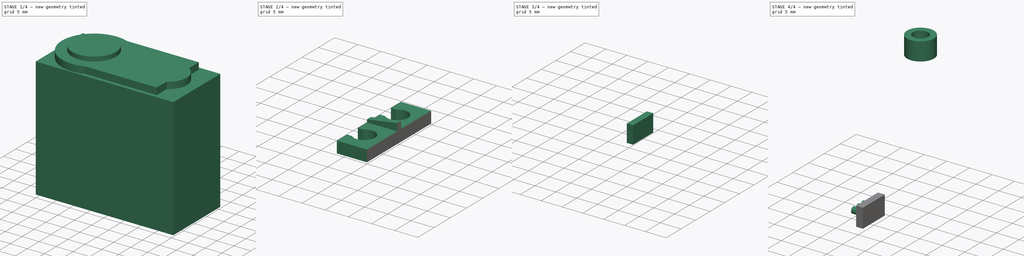
[diagram: build sequence overview — one tinted view per stage of 4, left to right]
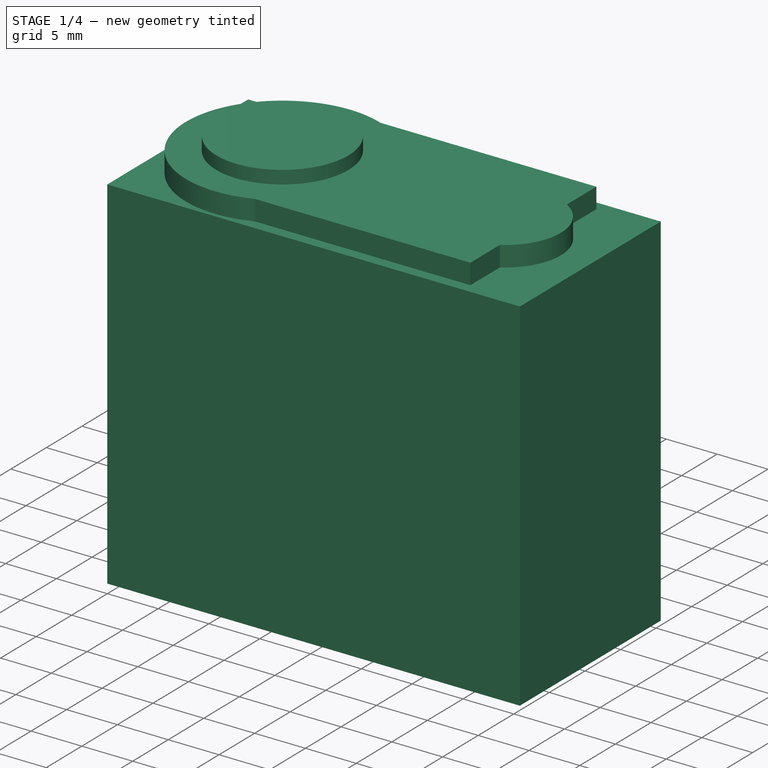
[diagram: stage 1 of 4 — iso view after this stage's code; geometry added in this stage tinted green]
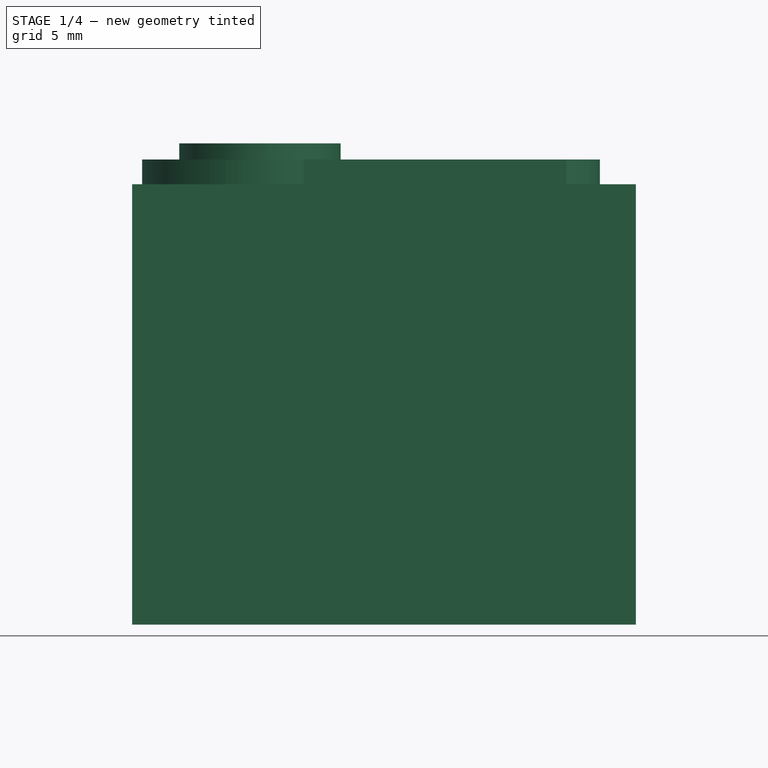
[diagram: stage 1 of 4 — front view after this stage's code; geometry added in this stage tinted green]
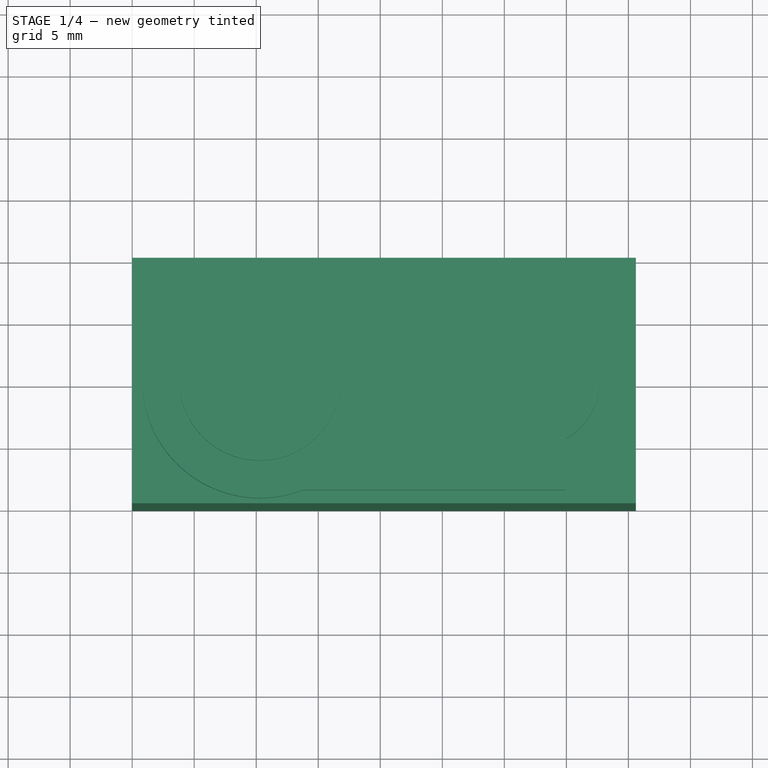
[diagram: stage 1 of 4 — top view after this stage's code; geometry added in this stage tinted green]
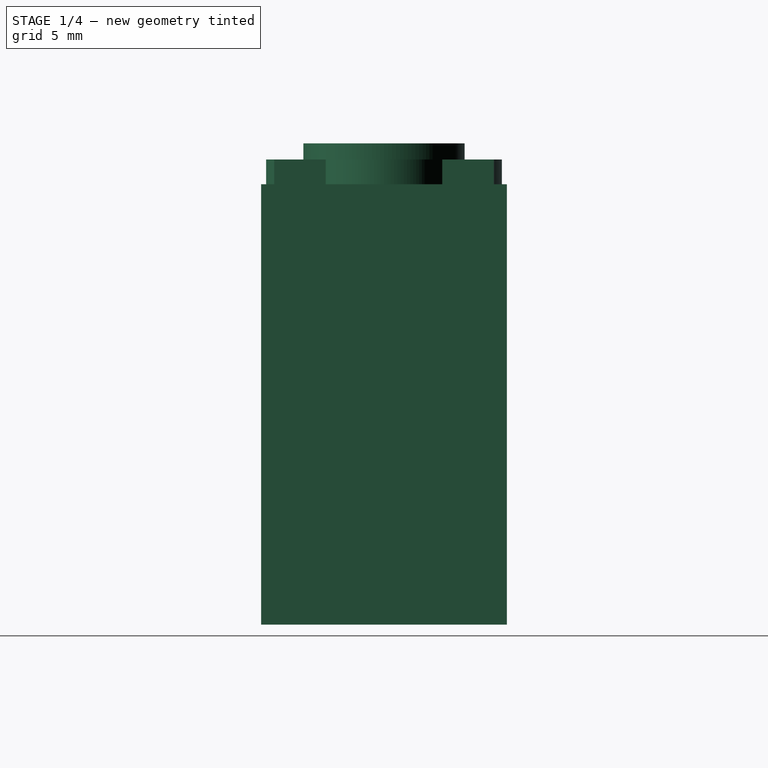
[diagram: stage 1 of 4 — right view after this stage's code; geometry added in this stage tinted green]
FCSTD DOCUMENT  (FreeCAD 2023.1102R14555 (Git shallow))
Label: Hitec_D625MW
License: All rights reserved
LicenseURL: https://en.wikipedia.org/wiki/All_rights_reserved
objects: Sketcher::SketchObject×9, PartDesign::Pad×9, PartDesign::Body×3, PartDesign::Plane×3, PartDesign::SubShapeBinder×3, Part::SubShapeBinder×1, PartDesign::Hole×1, PartDesign::Mirrored×1, PartDesign::Boolean×1, PartDesign::Fillet×1, App::Part×1
note: 66 computed .brp shape members not serialized (recipe doc carries the construction recipe); baked Part::Feature solids carry a one-line shape summary decoded from their .brp

FEATURE [Sketcher::SketchObject] Sketch
  ArcFitTolerance = 1e-06
  AttachmentSupport = -> [XY_Plane]
  ExternalBSplineMaxDegree = 5
  ExternalBSplineTolerance = 0.0001
  FullyConstrained = true
  InternalTolerance = 1e-06
  InvalidShape = false
  MakeInternals = false
  MapMode = 5
  Support = -> [XY_Plane]
  TreeRank = 18
  ValidateShape = false
  sketch-geometry (4):
    g0: LineSegment StartX=0 StartY=0 StartZ=0 EndX=40.6 EndY=0 EndZ=0
    g1: LineSegment StartX=40.6 StartY=0 StartZ=0 EndX=40.6 EndY=19.8 EndZ=0
    g2: LineSegment StartX=40.6 StartY=19.8 StartZ=0 EndX=0 EndY=19.8 EndZ=0
    g3: LineSegment StartX=0 StartY=19.8 StartZ=0 EndX=0 EndY=0 EndZ=0
  constraints (11):
    c: Coincident(g0,g1)
    c: Coincident(g1,g2)
    c: Coincident(g2,g3)
    c: Coincident(g3,g0)
    c: Horizontal(g0)
    c: Horizontal(g2)
    c: Vertical(g1)
    c: Vertical(g3)
    c: Coincident(g0,g-1)
    c: Distance(g0) = 40.6
    c: Distance(g1) = 19.8
FEATURE [PartDesign::Pad] Pad
  AddSubType = 0
  AlongSketchNormal = false
  AutoTaperInnerAngle = true
  CheckUpToFaceLimits = true
  ClaimChildren = false
  Direction = (0,0,1)
  Fit = 0
  FitJoin = 0
  InnerFit = 0
  InnerFitJoin = 0
  InvalidShape = false
  Length = 35.5
  Length2 = 10
  Linearize = true
  NewSolid = false
  Profile = -> Sketch
  ReferenceAxis = -> Sketch [N_Axis]
  Refine = true
  Suppress = false
  TaperInnerAngle = 0
  TaperInnerAngleRev = 0
  TreeRank = 19
  Type = 0
  ValidateShape = true
  _ProfileBasedVersion = 1
FEATURE [Sketcher::SketchObject] Sketch001
  ArcFitTolerance = 1e-06
  AttachmentSupport = -> [Pad]
  ExternalBSplineMaxDegree = 5
  ExternalBSplineTolerance = 0.0001
  ExternalGeometry = -> [Pad]
  FullyConstrained = true
  InternalTolerance = 1e-06
  InvalidShape = false
  MakeInternals = false
  MapMode = 5
  Placement = pos=(0,0,35.5) rot=(0,0,1;0rad)
  Support = -> [Pad]
  TreeRank = 20
  ValidateShape = false
  sketch-geometry (11):
    g0: ArcOfCircle CenterX=10.3 CenterY=9.9 CenterZ=0 NormalX=0 NormalY=0 NormalZ=1 AngleXU=0 Radius=9.5 StartAngle=1.21709 EndAngle=5.0661
    g1: LineSegment StartX=13.937 StartY=18.75 StartZ=0 EndX=35 EndY=18.75 EndZ=0
    g2: LineSegment StartX=35 StartY=18.75 StartZ=0 EndX=35 EndY=14.6 EndZ=0
    g3: LineSegment StartX=13.937 StartY=1.05 StartZ=0 EndX=35 EndY=1.05 EndZ=0
    g4: LineSegment StartX=35 StartY=1.05 StartZ=0 EndX=35 EndY=5.2 EndZ=0
    g5: ArcOfCircle CenterX=32.2593 CenterY=9.9 CenterZ=0 NormalX=0 NormalY=0 NormalZ=1 AngleXU=0 Radius=5.44074 StartAngle=5.24032 EndAngle=7.32605
    g6: GeomPoint [constr] X=37.7 Y=9.9 Z=0
    g7: ArcOfCircle CenterX=13.937 CenterY=19.75 CenterZ=0 NormalX=0 NormalY=0 NormalZ=1 AngleXU=0 Radius=1 StartAngle=4.35868 EndAngle=4.71239
    g8: ArcOfCircle CenterX=13.937 CenterY=0.05 CenterZ=0 NormalX=0 NormalY=0 NormalZ=1 AngleXU=0 Radius=1 StartAngle=1.5708 EndAngle=1.9245
    g9: LineSegment [constr] StartX=10.3 StartY=9.9 StartZ=0 EndX=10.3 EndY=19.8 EndZ=0
    g10: LineSegment [constr] StartX=10.3 StartY=9.9 StartZ=0 EndX=10.3 EndY=0 EndZ=0
  constraints (32):
    c: Horizontal(g1)
    c: Coincident(g2,g1)
    c: Vertical(g2)
    c: Horizontal(g3)
    c: Coincident(g4,g3)
    c: Vertical(g4)
    c: Coincident(g5,g2)
    c: Coincident(g5,g4)
    c: Equal(g2,g4)
    c: Equal(g3,g1)
    c: Vertical(g2,g4)
    c: PointOnObject(g6,g5)
    c: Horizontal(g6,g5)
    c: DistanceX(g4,g6) = 2.7
    c: Tangent(g0,g7) = 1.5708
    c: Tangent(g1,g7) = -1.5708
    c: Tangent(g0,g8) = 1.5708
    c: Tangent(g3,g8) = 1.5708
    c: Equal(g8,g7)
    c: Radius(g7) = 1
    c: DistanceY(g3,g1) = 17.7
    c: Distance(g2,g4) = 9.4
    c: Radius(g0) = 9.5
    c: Coincident(g9,g0)
    c: PointOnObject(g9,g-3)
    c: Vertical(g9)
    c: Coincident(g10,g0)
    c: PointOnObject(g10,g-4)
    c: Vertical(g10)
    c: Equal(g10,g9)
    c: DistanceX(g-2,g0) = 10.3
    c: Distance(g1,g-5) = 5.6
FEATURE [PartDesign::Pad] Pad001
  AddSubType = 0
  AlongSketchNormal = false
  AutoTaperInnerAngle = true
  BaseFeature = -> Pad
  CheckUpToFaceLimits = true
  ClaimChildren = false
  Direction = (0,0,1)
  Fit = 0
  FitJoin = 0
  InnerFit = 0
  InnerFitJoin = 0
  InvalidShape = false
  Length = 2
  Length2 = 10
  Linearize = true
  NewSolid = false
  Profile = -> Sketch001
  ReferenceAxis = -> Sketch001 [N_Axis]
  Refine = true
  Suppress = false
  TaperInnerAngle = 0
  TaperInnerAngleRev = 0
  TreeRank = 21
  Type = 0
  ValidateShape = true
  _ProfileBasedVersion = 1
FEATURE [Sketcher::SketchObject] Sketch002
  ArcFitTolerance = 1e-06
  AttachmentSupport = -> [Pad001]
  ExternalBSplineMaxDegree = 5
  ExternalBSplineTolerance = 0.0001
  ExternalGeometry = -> [Pad001]
  FullyConstrained = true
  InternalTolerance = 1e-06
  InvalidShape = false
  MakeInternals = false
  MapMode = 5
  Placement = pos=(0,0,37.5) rot=(0,0,1;0rad)
  Support = -> [Pad001]
  TreeRank = 22
  ValidateShape = false
  sketch-geometry (1):
    g0: Circle CenterX=10.3 CenterY=9.9 CenterZ=0 NormalX=0 NormalY=0 NormalZ=1 AngleXU=0 Radius=6.5
  constraints (2):
    c: Coincident(g0,g-3)
    c: Diameter(g0) = 13
FEATURE [PartDesign::Pad] Pad002
  AddSubType = 0
  AlongSketchNormal = false
  AutoTaperInnerAngle = true
  BaseFeature = -> Pad001
  CheckUpToFaceLimits = true
  ClaimChildren = false
  Direction = (0,0,1)
  Fit = 0
  FitJoin = 0
  InnerFit = 0
  InnerFitJoin = 0
  InvalidShape = false
  Length = 1.3
  Length2 = 10
  Linearize = true
  NewSolid = false
  Profile = -> Sketch002
  ReferenceAxis = -> Sketch002 [N_Axis]
  Refine = true
  Suppress = false
  TaperInnerAngle = 0
  TaperInnerAngleRev = 0
  TreeRank = 23
  Type = 0
  ValidateShape = true
  _ProfileBasedVersion = 1
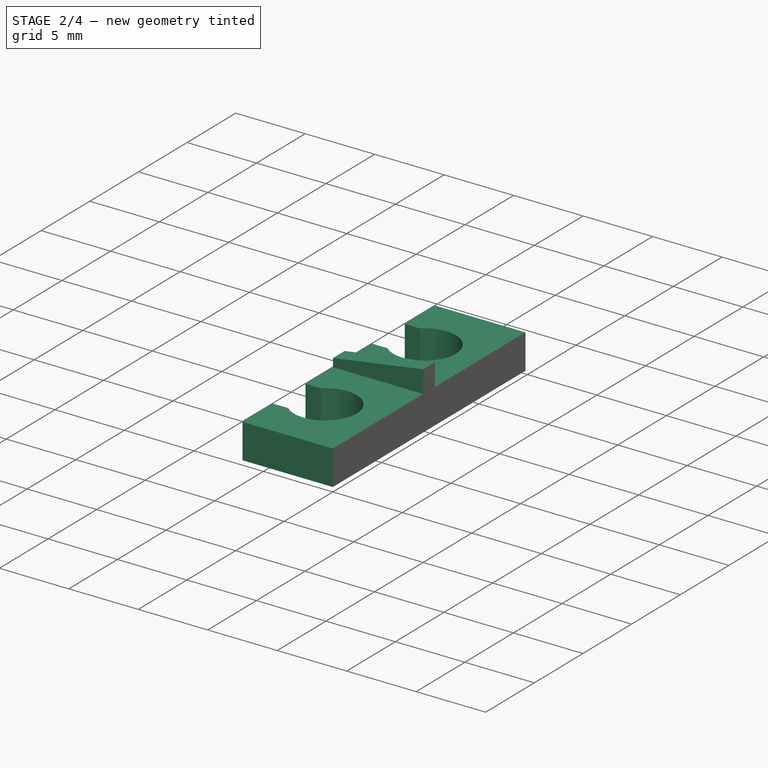
[diagram: stage 2 of 4 — iso view after this stage's code; geometry added in this stage tinted green]
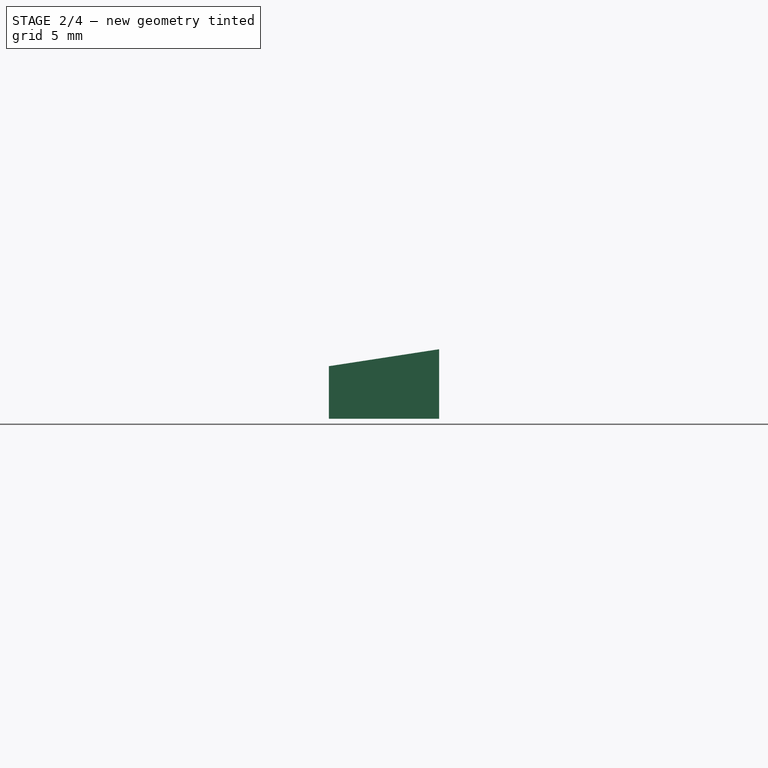
[diagram: stage 2 of 4 — front view after this stage's code; geometry added in this stage tinted green]
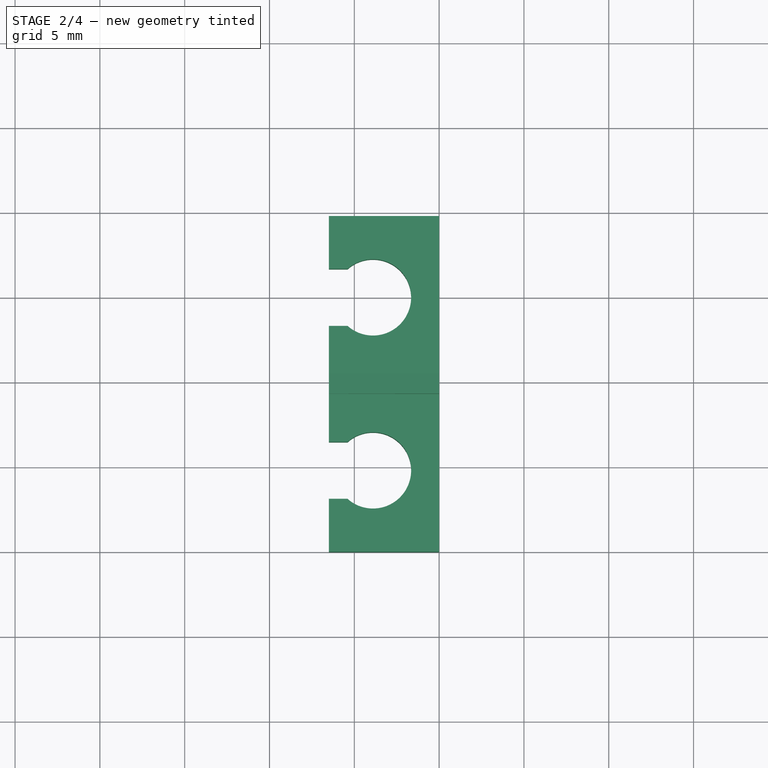
[diagram: stage 2 of 4 — top view after this stage's code; geometry added in this stage tinted green]
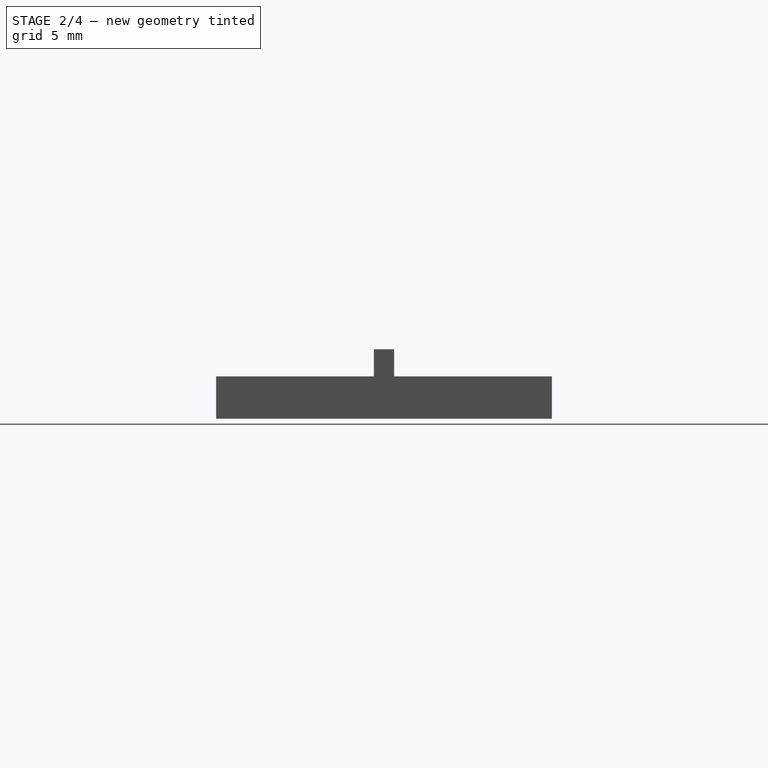
[diagram: stage 2 of 4 — right view after this stage's code; geometry added in this stage tinted green]
FEATURE [Sketcher::SketchObject] Sketch003
  ArcFitTolerance = 1e-06
  AttachmentSupport = -> [Pad002]
  ExternalBSplineMaxDegree = 5
  ExternalBSplineTolerance = 0.0001
  ExternalGeometry = -> [Pad002]
  FullyConstrained = true
  InternalTolerance = 1e-06
  InvalidShape = false
  MakeInternals = false
  MapMode = 5
  Placement = pos=(0,0,38.8) rot=(0,0,1;0rad)
  Support = -> [Pad002]
  TreeRank = 24
  ValidateShape = false
  sketch-geometry (1):
    g0: Circle CenterX=10.3 CenterY=9.9 CenterZ=0 NormalX=0 NormalY=0 NormalZ=1 AngleXU=0 Radius=5.5
  constraints (2):
    c: Coincident(g0,g-3)
    c: Diameter(g0) = 11
FEATURE [PartDesign::Pad] Pad003
  AddSubType = 0
  AlongSketchNormal = false
  AutoTaperInnerAngle = true
  BaseFeature = -> Pad002
  CheckUpToFaceLimits = true
  ClaimChildren = false
  Direction = (0,0,1)
  Fit = 0
  FitJoin = 0
  InnerFit = 0
  InnerFitJoin = 0
  InvalidShape = false
  Length = 0.5
  Length2 = 10
  Linearize = true
  NewSolid = false
  Profile = -> Sketch003
  ReferenceAxis = -> Sketch003 [N_Axis]
  Refine = true
  Suppress = false
  TaperInnerAngle = 0
  TaperInnerAngleRev = 0
  TreeRank = 25
  Type = 0
  ValidateShape = true
  _ProfileBasedVersion = 1
FEATURE [PartDesign::Body] Body001  label="Gear"
  AutoGroupSolids = false
  ClaimAllChildren = false
  ExportMode = 0
  Group = -> [Import,Sketch004,Pad004,Hole]
  InvalidShape = false
  Origin = -> Origin002
  Tip = -> Hole
  TreeRank = 37
  ValidateShape = false
  _ExportChildren = -> [Import,Pad004,Hole]
  _GroupVersion = 1
FEATURE [PartDesign::Plane] DatumPlane
  AttachmentOffset = pos=(0,0,27) rot=(0,0,1;0rad)
  AttachmentSupport = -> [Pad003]
  InvalidShape = false
  Length = 10
  MapMode = 5
  MinimumLength = 10
  MinimumWidth = 10
  Placement = pos=(0,0,27) rot=(0,0,1;3.14159rad)
  ResizeMode = 0
  Support = -> [Pad003]
  TreeRank = 45
  ValidateShape = false
  Width = 10
FEATURE [Sketcher::SketchObject] Sketch005
  ArcFitTolerance = 1e-06
  AttachmentSupport = -> [DatumPlane]
  ExternalBSplineMaxDegree = 5
  ExternalBSplineTolerance = 0.0001
  ExternalGeometry = -> [Pad003]
  FullyConstrained = true
  InternalTolerance = 1e-06
  InvalidShape = false
  MakeInternals = false
  MapMode = 5
  Placement = pos=(0,0,27) rot=(0,0,1;3.14159rad)
  Support = -> [DatumPlane]
  TreeRank = 46
  ValidateShape = false
  sketch-geometry (12):
    g0: LineSegment StartX=0 StartY=-19.8 StartZ=0 EndX=6.5 EndY=-19.8 EndZ=0
    g1: LineSegment StartX=6.5 StartY=-19.8 StartZ=0 EndX=6.5 EndY=-16.6771 EndZ=0
    g2: LineSegment StartX=6.5 StartY=-16.6771 StartZ=0 EndX=5.4 EndY=-16.6771 EndZ=0
    g3: ArcOfCircle CenterX=3.9 CenterY=-15 CenterZ=0 NormalX=0 NormalY=0 NormalZ=1 AngleXU=0 Radius=2.25 StartAngle=0.841069 EndAngle=5.44212
    g4: LineSegment StartX=5.4 StartY=-13.3229 StartZ=0 EndX=6.5 EndY=-13.3229 EndZ=0
    g5: LineSegment StartX=6.5 StartY=-13.3229 StartZ=0 EndX=6.5 EndY=-6.47705 EndZ=0
    g6: LineSegment StartX=6.5 StartY=-6.47705 StartZ=0 EndX=5.4 EndY=-6.47705 EndZ=0
    g7: ArcOfCircle CenterX=3.9 CenterY=-4.8 CenterZ=0 NormalX=0 NormalY=0 NormalZ=1 AngleXU=0 Radius=2.25 StartAngle=0.841069 EndAngle=5.44212
    g8: LineSegment StartX=5.4 StartY=-3.12295 StartZ=0 EndX=6.5 EndY=-3.12295 EndZ=0
    g9: LineSegment StartX=6.5 StartY=-3.12295 StartZ=0 EndX=6.5 EndY=0 EndZ=0
    g10: LineSegment StartX=6.5 StartY=0 StartZ=0 EndX=0 EndY=0 EndZ=0
    g11: LineSegment StartX=0 StartY=0 StartZ=0 EndX=0 EndY=-19.8 EndZ=0
  constraints (36):
    c: Coincident(g0,g-3)
    c: Horizontal(g0)
    c: Coincident(g1,g0)
    c: Vertical(g1)
    c: Coincident(g2,g1)
    c: Horizontal(g2)
    c: Horizontal(g4)
    c: Coincident(g5,g4)
    c: Vertical(g5)
    c: Coincident(g6,g5)
    c: Horizontal(g6)
    c: Horizontal(g8)
    c: Coincident(g9,g8)
    c: PointOnObject(g9,g-1)
    c: Vertical(g9)
    c: Coincident(g10,g9)
    c: Coincident(g10,g-4)
    c: Coincident(g11,g10)
    c: Coincident(g11,g0)
    c: Equal(g3,g7)
    c: Equal(g1,g9)
    c: Vertical(g4,g1)
    c: Vertical(g5,g8)
    c: Equal(g6,g4)
    c: Distance(g2) = 1.1
    c: Distance(g3,g7) = 10.2
    c: Radius(g3) = 2.25
    c: Distance(g0) = 6.5
    c: Coincident(g7,g6)
    c: Coincident(g7,g8)
    c: Coincident(g3,g2)
    c: Coincident(g3,g4)
    c: Vertical(g3,g7)
    c: Vertical(g6,g7)
    c: Vertical(g3,g2)
    c: DistanceX(g7,g8) = 2.6
FEATURE [PartDesign::Pad] Pad005
  AddSubType = 0
  AlongSketchNormal = false
  AutoTaperInnerAngle = true
  CheckUpToFaceLimits = true
  ClaimChildren = false
  Direction = (0,0,1)
  Fit = 0
  FitJoin = 0
  InnerFit = 0
  InnerFitJoin = 0
  InvalidShape = false
  Length = 2.5
  Length2 = 10
  Linearize = true
  NewSolid = true
  Profile = -> Sketch005
  ReferenceAxis = -> Sketch005 [N_Axis]
  Refine = true
  Suppress = false
  TaperInnerAngle = 0
  TaperInnerAngleRev = 0
  TreeRank = 47
  Type = 0
  ValidateShape = true
  _ProfileBasedVersion = 1
FEATURE [PartDesign::Plane] DatumPlane001
  AttachmentOffset = pos=(0,0,0) rot=(1,0,0;1.5708rad)
  AttachmentSupport = -> [Pad005]
  InvalidShape = false
  Length = 28.25
  MapMode = 45
  MinimumLength = 10
  MinimumWidth = 10
  Placement = pos=(-6.5,9.9,28.25) rot=(0.57735,0.57735,0.57735;4.18879rad)
  ResizeMode = 0
  Support = -> [Pad005]
  TreeRank = 48
  ValidateShape = false
  Width = 10
FEATURE [Sketcher::SketchObject] Sketch006
  ArcFitTolerance = 1e-06
  AttachmentSupport = -> [DatumPlane001]
  ExternalBSplineMaxDegree = 5
  ExternalBSplineTolerance = 0.0001
  ExternalGeometry = -> [Pad005]
  FullyConstrained = true
  InternalTolerance = 1e-06
  InvalidShape = false
  MakeInternals = false
  MapMode = 5
  Placement = pos=(-6.5,9.9,28.25) rot=(0.57735,0.57735,0.57735;4.18879rad)
  Support = -> [DatumPlane001]
  TreeRank = 49
  ValidateShape = false
  sketch-geometry (4):
    g0: LineSegment StartX=1.25 StartY=0 StartZ=0 EndX=1.25 EndY=6.5 EndZ=0
    g1: LineSegment StartX=1.25 StartY=6.5 StartZ=0 EndX=2.85 EndY=6.5 EndZ=0
    g2: LineSegment StartX=2.85 StartY=6.5 StartZ=0 EndX=1.85 EndY=0 EndZ=0
    g3: LineSegment StartX=1.25 StartY=0 StartZ=0 EndX=1.85 EndY=0 EndZ=0
  constraints (10):
    c: Coincident(g0,g-4)
    c: Coincident(g0,g-3)
    c: Coincident(g0,g1)
    c: Horizontal(g1)
    c: Coincident(g1,g2)
    c: PointOnObject(g2,g-1)
    c: Coincident(g3,g0)
    c: Coincident(g3,g2)
    c: Distance(g3) = 0.6
    c: Distance(g1) = 1.6
FEATURE [PartDesign::Pad] Pad006
  AddSubType = 0
  AlongSketchNormal = false
  AutoTaperInnerAngle = true
  BaseFeature = -> Pad005
  CheckUpToFaceLimits = true
  ClaimChildren = false
  Direction = (2e-16,1,0)
  Fit = 0
  FitJoin = 0
  InnerFit = 0
  InnerFitJoin = 0
  InvalidShape = false
  Length = 1.2
  Length2 = 10
  Linearize = true
  Midplane = true
  NewSolid = false
  Profile = -> Sketch006
  ReferenceAxis = -> Sketch006 [N_Axis]
  Refine = true
  Suppress = false
  TaperInnerAngle = 0
  TaperInnerAngleRev = 0
  TreeRank = 50
  Type = 0
  ValidateShape = true
  _ProfileBasedVersion = 1
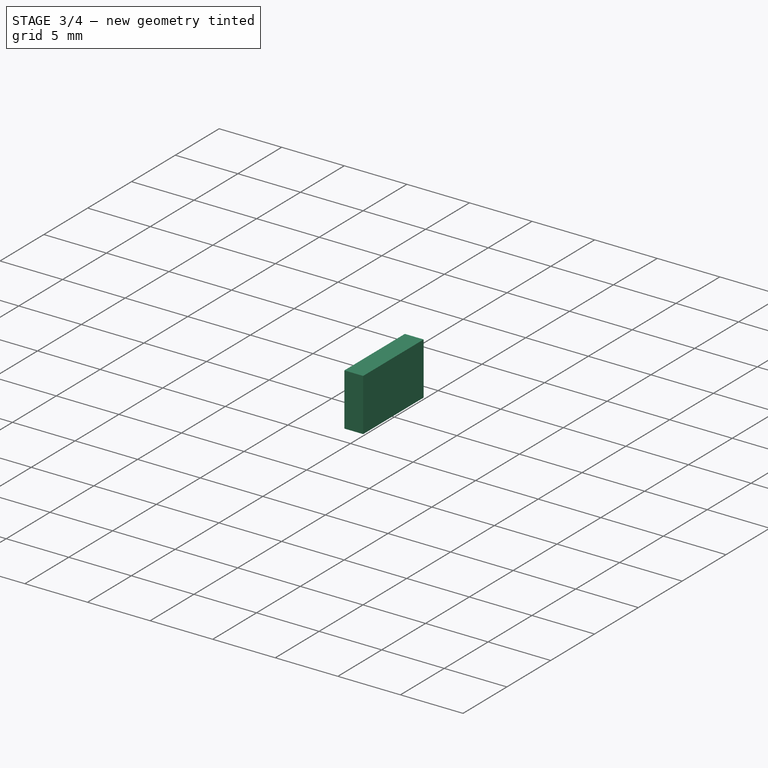
[diagram: stage 3 of 4 — iso view after this stage's code; geometry added in this stage tinted green]
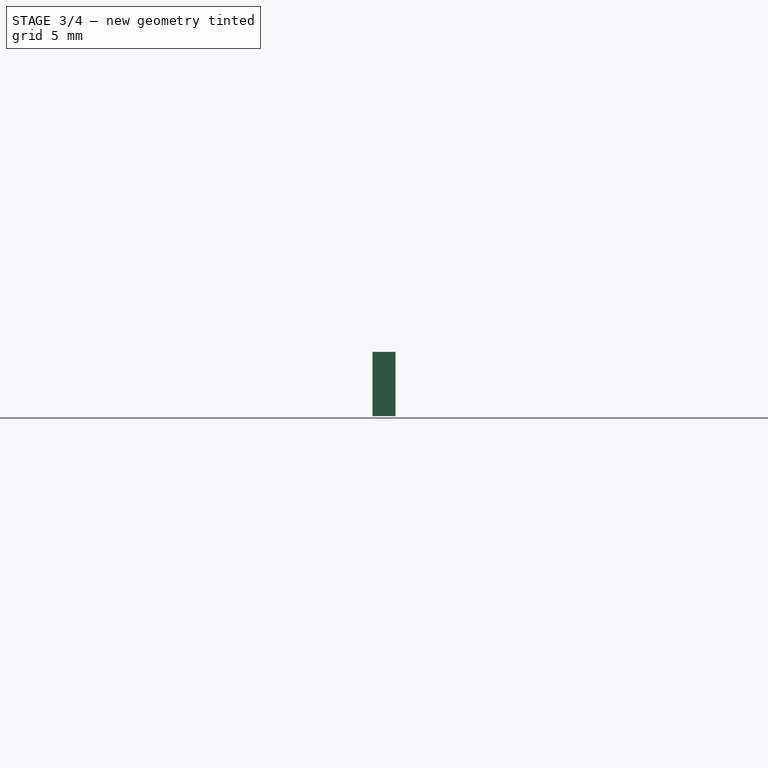
[diagram: stage 3 of 4 — front view after this stage's code; geometry added in this stage tinted green]
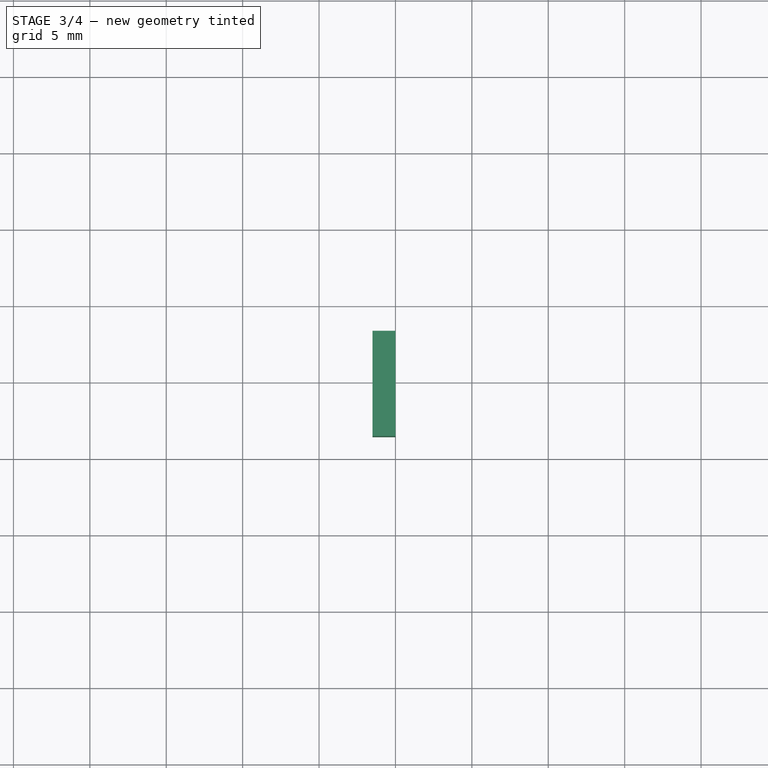
[diagram: stage 3 of 4 — top view after this stage's code; geometry added in this stage tinted green]
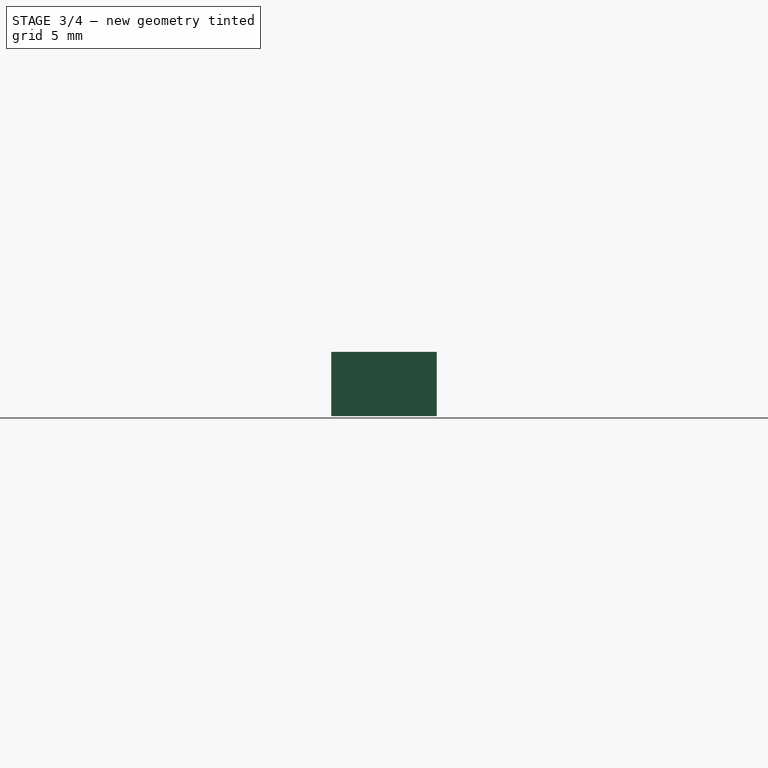
[diagram: stage 3 of 4 — right view after this stage's code; geometry added in this stage tinted green]
FEATURE [PartDesign::Plane] DatumPlane002
  AttachmentOffset = pos=(0,0,0) rot=(1,0,0;1.5708rad)
  AttachmentSupport = -> [Pad003]
  InvalidShape = false
  Length = 39.3
  MapMode = 45
  MinimumLength = 10
  MinimumWidth = 10
  Placement = pos=(20.3,9.9,17.75) rot=(0,1,0;4.71239rad)
  ResizeMode = 0
  Support = -> [Pad003]
  TreeRank = 51
  ValidateShape = false
  Width = 19.8
FEATURE [PartDesign::Mirrored] Mirrored
  AddSubType = 0
  BaseFeature = -> Pad006
  CopyShape = false
  InvalidShape = false
  MirrorPlane = -> DatumPlane002
  NewSolid = false
  OriginalSubs = -> [Pad006,Pad005]
  Originals = -> [Pad006,Pad005]
  ParallelTransform = true
  Refine = true
  SubTransform = true
  Suppress = false
  TreeRank = 52
  ValidateShape = true
  _Version = 3
FEATURE [PartDesign::SubShapeBinder] Reference  label="Reference(Mirrored)"
  BindCopyOnChange = 0
  BindMode = 0
  ClaimChildren = false
  Context = -> Part [Body.Boolean.Reference.]
  EdgeTolerance = 1e-06
  FillStyle = 0
  Fuse = false
  InvalidShape = false
  MakeFace = true
  MergeEdges = true
  OffsetFill = false
  OffsetIntersection = false
  OffsetJoinType = 0
  OffsetOpenResult = false
  Outline = false
  PartialLoad = false
  Relative = true
  SplitEdges = false
  Support = -> [Mirrored]
  TightBound = false
  TreeRank = 56
  ValidateShape = false
  _Version = 8
FEATURE [PartDesign::SubShapeBinder] Reference001  label="Reference001(Pad003)"
  BindCopyOnChange = 0
  BindMode = 0
  ClaimChildren = false
  Context = -> Part [Body.Boolean.Reference001.]
  EdgeTolerance = 1e-06
  FillStyle = 0
  Fuse = false
  InvalidShape = false
  MakeFace = true
  MergeEdges = true
  OffsetFill = false
  OffsetIntersection = false
  OffsetJoinType = 0
  OffsetOpenResult = false
  Outline = false
  PartialLoad = false
  Relative = true
  SplitEdges = false
  Support = -> [Pad003]
  TightBound = false
  TreeRank = 57
  ValidateShape = false
  _Version = 8
FEATURE [PartDesign::Boolean] Boolean
  BaseFeature = -> Mirrored
  ClaimAllChildren = false
  ExportMode = 0
  Group = -> [Reference,Reference001]
  InvalidShape = false
  NewSolid = false
  Refine = true
  Suppress = false
  TreeRank = 58
  Type = 0
  ValidateShape = true
  _ExportChildren = -> [Reference,Reference001]
  _GroupVersion = 1
FEATURE [PartDesign::Fillet] Fillet
  AddSubType = 0
  Base = -> Boolean [Edge41,Edge6,Edge8,Edge43,Edge37,Edge26,Edge25,Edge35,Edge56,Edge117,Edge81,Edge125]
  BaseFeature = -> Boolean
  InvalidShape = false
  NewSolid = false
  Radius = 1.6
  Refine = true
  SupportTransform = false
  Suppress = false
  TreeRank = 59
  UseAllEdges = false
  ValidateShape = true
FEATURE [PartDesign::Body] Body
  AutoGroupSolids = false
  ClaimAllChildren = false
  ExportMode = 0
  Group = -> [Sketch,Pad,Sketch001,Pad001,Sketch002,Pad002,Sketch003,Pad003,DatumPlane,Sketch005,Pad005,DatumPlane001,Sketch006,Pad006,DatumPlane002,Mirrored,Boolean,Fillet]
  InvalidShape = false
  Origin = -> Origin001
  Tip = -> Fillet
  TreeRank = 17
  ValidateShape = false
  _ExportChildren = -> [Pad,Pad001,Pad002,Pad003,DatumPlane,Pad005,DatumPlane001,Pad006,DatumPlane002,Mirrored,Boolean,Fillet]
  _GroupVersion = 1
FEATURE [PartDesign::SubShapeBinder] Binder  label="Binder(Fillet)"
  BindCopyOnChange = 0
  BindMode = 0
  ClaimChildren = false
  Context = -> Part [Body002.Binder.]
  EdgeTolerance = 1e-06
  FillStyle = 0
  Fuse = false
  InvalidShape = false
  MakeFace = true
  MergeEdges = true
  OffsetFill = false
  OffsetIntersection = false
  OffsetJoinType = 0
  OffsetOpenResult = false
  Outline = false
  PartialLoad = false
  Relative = true
  SplitEdges = false
  Support = -> [Body[Fillet.Face49]]
  TightBound = false
  TreeRank = 72
  ValidateShape = false
  _Version = 8
FEATURE [Sketcher::SketchObject] Sketch007
  ArcFitTolerance = 1e-06
  AttachmentSupport = -> [Binder]
  ExternalBSplineMaxDegree = 5
  ExternalBSplineTolerance = 0.0001
  ExternalGeometry = -> [Binder]
  FullyConstrained = true
  InternalTolerance = 1e-06
  InvalidShape = false
  MakeInternals = false
  MapMode = 5
  Placement = pos=(0,0,0) rot=(0.57735,-0.57735,-0.57735;2.0944rad)
  Support = -> [Binder]
  TreeRank = 73
  ValidateShape = false
  sketch-geometry (6):
    g0: LineSegment StartX=-13.35 StartY=7.3 StartZ=0 EndX=-6.45 EndY=7.3 EndZ=0
    g1: LineSegment StartX=-6.45 StartY=7.3 StartZ=0 EndX=-6.45 EndY=3.1 EndZ=0
    g2: LineSegment StartX=-6.45 StartY=3.1 StartZ=0 EndX=-13.35 EndY=3.1 EndZ=0
    g3: LineSegment StartX=-13.35 StartY=3.1 StartZ=0 EndX=-13.35 EndY=7.3 EndZ=0
    g4: LineSegment [constr] StartX=-13.35 StartY=3.1 StartZ=0 EndX=-18.2 EndY=3.1 EndZ=0
    g5: LineSegment [constr] StartX=-6.45 StartY=3.1 StartZ=0 EndX=-1.6 EndY=3.1 EndZ=0
  constraints (18):
    c: Coincident(g0,g1)
    c: Coincident(g1,g2)
    c: Coincident(g2,g3)
    c: Coincident(g3,g0)
    c: Horizontal(g0)
    c: Horizontal(g2)
    c: Vertical(g1)
    c: Vertical(g3)
    c: Distance(g0) = 6.9
    c: Distance(g1) = 4.2
    c: Coincident(g4,g2)
    c: PointOnObject(g4,g-4)
    c: Horizontal(g4)
    c: Coincident(g5,g1)
    c: PointOnObject(g5,g-3)
    c: Horizontal(g5)
    c: Equal(g5,g4)
    c: DistanceY(g-1,g5) = 3.1
FEATURE [PartDesign::Pad] Pad007
  AddSubType = 0
  AlongSketchNormal = false
  AutoTaperInnerAngle = true
  CheckUpToFaceLimits = true
  ClaimChildren = false
  Direction = (-1,0,0)
  Fit = 0
  FitJoin = 0
  InnerFit = 0
  InnerFitJoin = 0
  InvalidShape = false
  Length = 1.5
  Length2 = 10
  Linearize = true
  NewSolid = false
  Profile = -> Sketch007
  ReferenceAxis = -> Sketch007 [N_Axis]
  Refine = true
  Suppress = false
  TaperInnerAngle = 0
  TaperInnerAngleRev = 0
  TreeRank = 74
  Type = 0
  ValidateShape = true
  _ProfileBasedVersion = 1
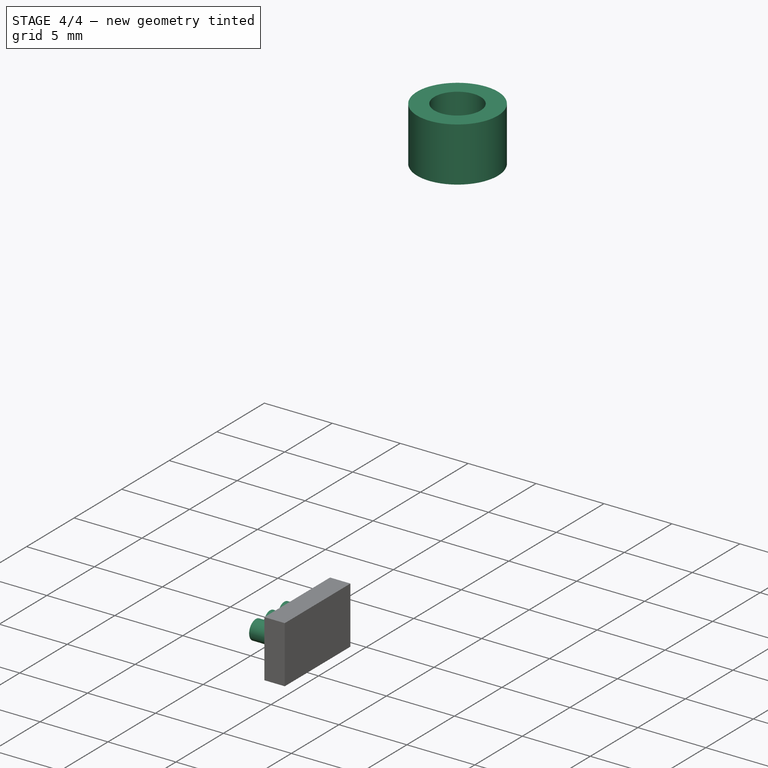
[diagram: stage 4 of 4 — iso view after this stage's code; geometry added in this stage tinted green]
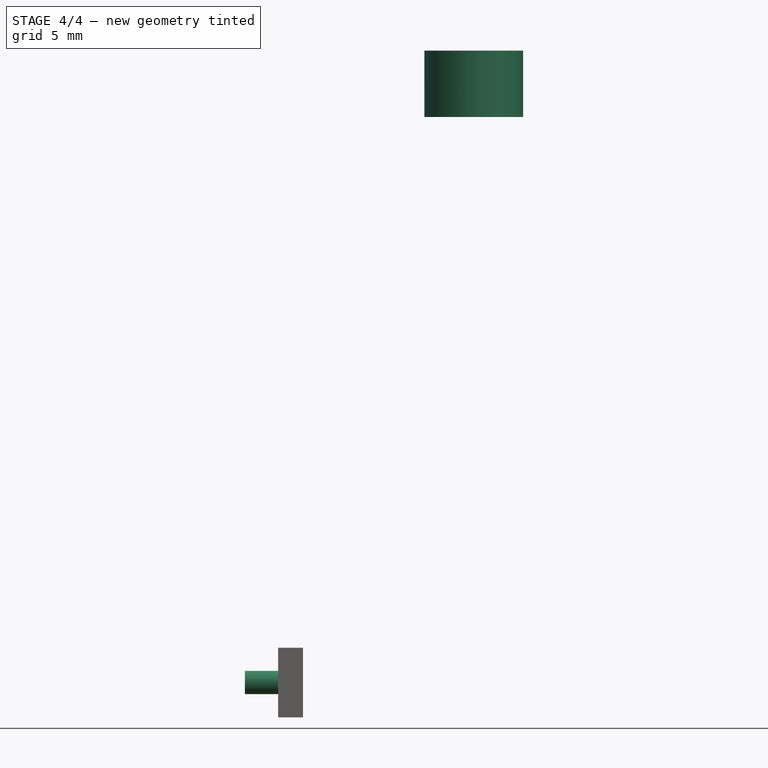
[diagram: stage 4 of 4 — front view after this stage's code; geometry added in this stage tinted green]
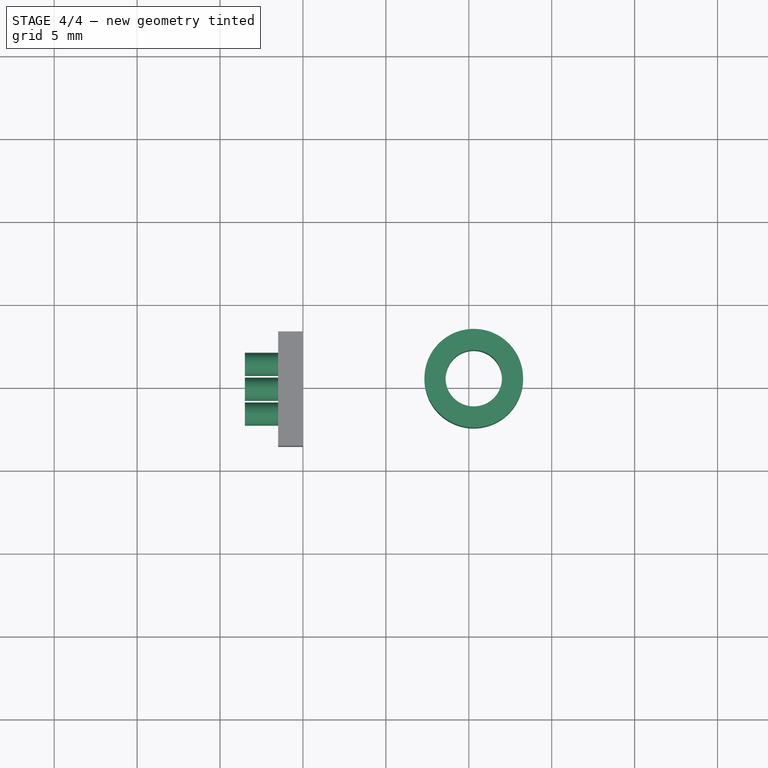
[diagram: stage 4 of 4 — top view after this stage's code; geometry added in this stage tinted green]
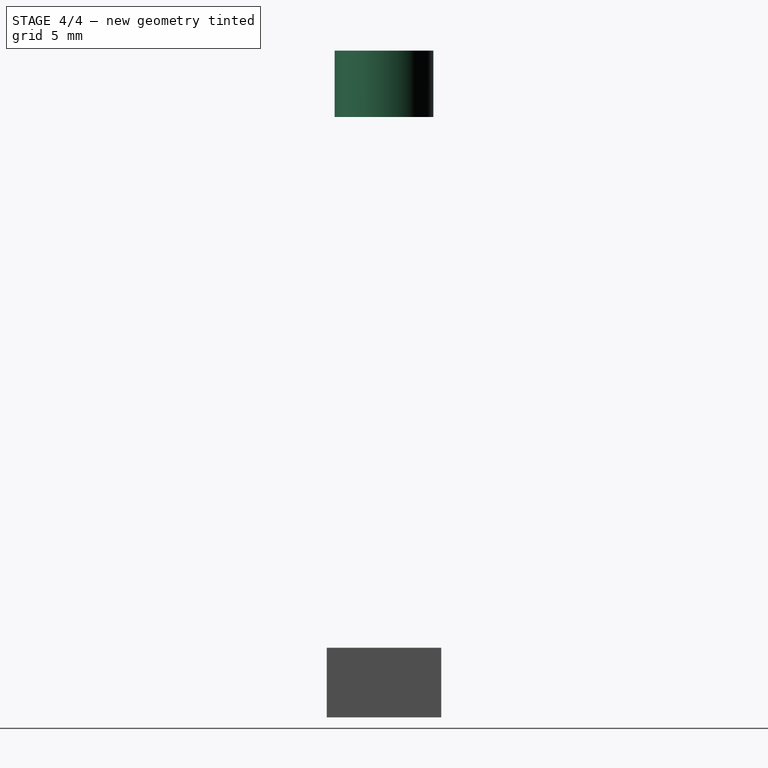
[diagram: stage 4 of 4 — right view after this stage's code; geometry added in this stage tinted green]
FEATURE [Part::SubShapeBinder] Import  label="Import(Pad003)"
  BindCopyOnChange = 0
  BindMode = 0
  ClaimChildren = false
  Context = -> Part [Body001.Import.]
  EdgeTolerance = 1e-06
  FillStyle = 0
  Fuse = false
  InvalidShape = false
  MakeFace = false
  MergeEdges = true
  OffsetFill = false
  OffsetIntersection = false
  OffsetJoinType = 0
  OffsetOpenResult = false
  Outline = false
  PartialLoad = false
  Relative = true
  SplitEdges = false
  Support = -> [Body[Pad003.]]
  TightBound = false
  TreeRank = 40
  ValidateShape = false
  _Version = 8
FEATURE [Sketcher::SketchObject] Sketch004
  ArcFitTolerance = 1e-06
  AttachmentSupport = -> [Import]
  ExternalBSplineMaxDegree = 5
  ExternalBSplineTolerance = 0.0001
  ExternalGeometry = -> [Import]
  FullyConstrained = true
  InternalTolerance = 1e-06
  InvalidShape = false
  MakeInternals = false
  MapMode = 5
  Placement = pos=(0,0,39.3) rot=(0,0,1;0rad)
  Support = -> [Import]
  TreeRank = 41
  ValidateShape = false
  sketch-geometry (1):
    g0: Circle CenterX=10.3 CenterY=9.9 CenterZ=0 NormalX=0 NormalY=0 NormalZ=1 AngleXU=0 Radius=2.975
  constraints (2):
    c: Coincident(g0,g-3)
    c: Diameter(g0) = 5.95
FEATURE [PartDesign::Pad] Pad004
  AddSubType = 0
  AlongSketchNormal = false
  AutoTaperInnerAngle = true
  CheckUpToFaceLimits = true
  ClaimChildren = false
  Direction = (0,0,1)
  Fit = 0
  FitJoin = 0
  InnerFit = 0
  InnerFitJoin = 0
  InvalidShape = false
  Length = 4
  Length2 = 10
  Linearize = true
  NewSolid = false
  Profile = -> Sketch004
  ReferenceAxis = -> Sketch004 [N_Axis]
  Refine = true
  Suppress = false
  TaperInnerAngle = 0
  TaperInnerAngleRev = 0
  TreeRank = 42
  Type = 0
  ValidateShape = true
  _ProfileBasedVersion = 1
FEATURE [PartDesign::Hole] Hole
  AddSubType = 1
  BaseFeature = -> Pad004
  ClaimChildren = false
  CustomThreadClearance = 0
  Depth = 18.7875
  DepthType = 0
  Diameter = 3.4
  DrillForDepth = false
  DrillPoint = 1
  DrillPointAngle = 118
  Fit = 0
  FitJoin = 0
  HoleCutCountersinkAngle = 90
  HoleCutCustomValues = false
  HoleCutDepth = 0
  HoleCutDiameter = 6.1
  HoleCutType = 0
  InnerFit = 0
  InnerFitJoin = 0
  InvalidShape = false
  Linearize = true
  ModelThread = false
  NewSolid = false
  Profile = -> Pad004 [Face3]
  Refine = true
  Suppress = false
  Tapered = false
  TaperedAngle = 90
  ThreadClass = 0
  ThreadDepth = 18.7875
  ThreadDepthType = 0
  ThreadDirection = 0
  ThreadFit = 0
  ThreadSize = 9
  ThreadType = 1
  Threaded = false
  TreeRank = 43
  UseCustomThreadClearance = false
  ValidateShape = true
  _ProfileBasedVersion = 1
FEATURE [Sketcher::SketchObject] Sketch008
  ArcFitTolerance = 1e-06
  AttachmentSupport = -> [Pad007]
  ExternalBSplineMaxDegree = 5
  ExternalBSplineTolerance = 0.0001
  ExternalGeometry = -> [Pad007]
  FullyConstrained = true
  InternalTolerance = 1e-06
  InvalidShape = false
  MakeInternals = false
  MapMode = 5
  Placement = pos=(-1.5,0,0) rot=(0.57735,-0.57735,-0.57735;2.0944rad)
  Support = -> [Pad007]
  TreeRank = 75
  ValidateShape = false
  sketch-geometry (7):
    g0: Circle CenterX=-11.4 CenterY=5.2 CenterZ=0 NormalX=0 NormalY=0 NormalZ=1 AngleXU=0 Radius=0.7
    g1: Circle CenterX=-9.9 CenterY=5.2 CenterZ=0 NormalX=0 NormalY=0 NormalZ=1 AngleXU=0 Radius=0.7
    g2: Circle CenterX=-8.4 CenterY=5.2 CenterZ=0 NormalX=0 NormalY=0 NormalZ=1 AngleXU=0 Radius=0.7
    g3: LineSegment [constr] StartX=-11.4 StartY=5.2 StartZ=0 EndX=-9.9 EndY=5.2 EndZ=0
    g4: LineSegment [constr] StartX=-9.9 StartY=5.2 StartZ=0 EndX=-8.4 EndY=5.2 EndZ=0
    g5: GeomPoint [constr] X=-6.45 Y=5.2 Z=0
    g6: GeomPoint [constr] X=-9.9 Y=7.3 Z=0
  constraints (15):
    c: Equal(g2,g1)
    c: Equal(g1,g0)
    c: Horizontal(g0,g1)
    c: Horizontal(g1,g2)
    c: Coincident(g3,g0)
    c: Coincident(g3,g1)
    c: Coincident(g4,g1)
    c: Coincident(g4,g2)
    c: Equal(g4,g3)
    c: Symmetric(g-3,g-3,g5)
    c: Horizontal(g2,g5)
    c: Distance(g4) = 1.5
    c: Diameter(g0) = 1.4
    c: Symmetric(g-4,g-4,g6)
    c: Vertical(g6,g1)
FEATURE [PartDesign::Pad] Pad008
  AddSubType = 0
  AlongSketchNormal = false
  AutoTaperInnerAngle = true
  BaseFeature = -> Pad007
  CheckUpToFaceLimits = true
  ClaimChildren = false
  ColoredElements = -> Pad008 [Face10,Face11,Face12,Face7,Face8,Face9]
  Direction = (-1,0,0)
  Fit = 0
  FitJoin = 0
  InnerFit = 0
  InnerFitJoin = 0
  InvalidShape = false
  Length = 2
  Length2 = 10
  Linearize = true
  NewSolid = false
  Profile = -> Sketch008
  ReferenceAxis = -> Sketch008 [N_Axis]
  Refine = true
  Suppress = false
  TaperInnerAngle = 0
  TaperInnerAngleRev = 0
  TreeRank = 76
  Type = 0
  ValidateShape = true
  _ProfileBasedVersion = 1
FEATURE [PartDesign::Body] Body002  label="Wires"
  AutoGroupSolids = false
  ClaimAllChildren = false
  ExportMode = 0
  Group = -> [Binder,Sketch007,Pad007,Sketch008,Pad008]
  InvalidShape = false
  Origin = -> Origin003
  Tip = -> Pad008
  TreeRank = 71
  ValidateShape = false
  _ExportChildren = -> [Binder,Pad007,Pad008]
  _GroupVersion = 1
FEATURE [App::Part] Part  label="Hitec_D625MW"
  ClaimAllChildren = false
  ExportMode = 1
  Group = -> [Body,Body001,Body002]
  Origin = -> Origin
  TreeRank = 5
  _ExportChildren = -> [Body,Body001,Body002]
  _GroupVersion = 1
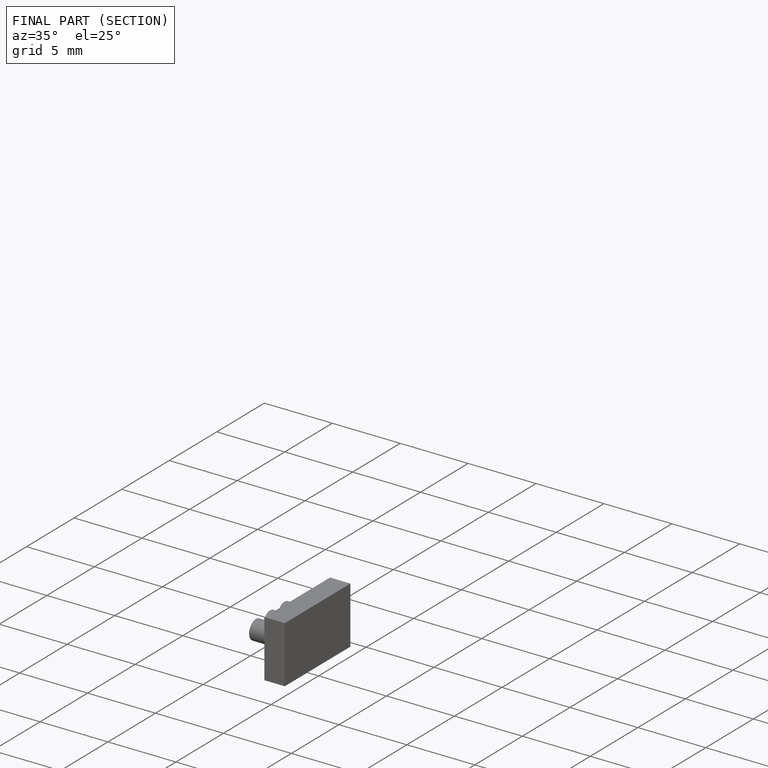
[diagram: finished part — half-section view (interior)]
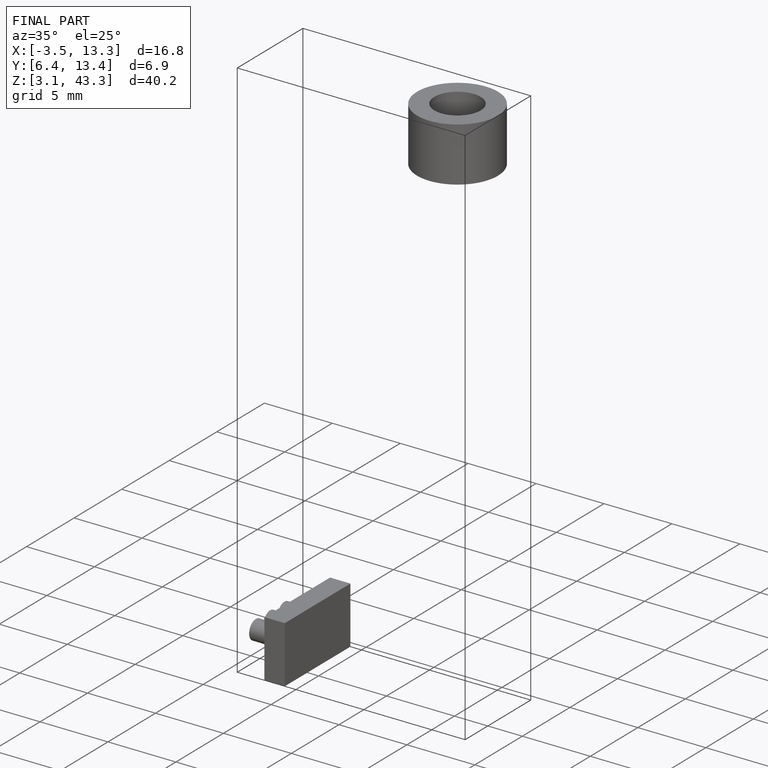
[diagram: finished part — iso view with bounding-box wireframe]
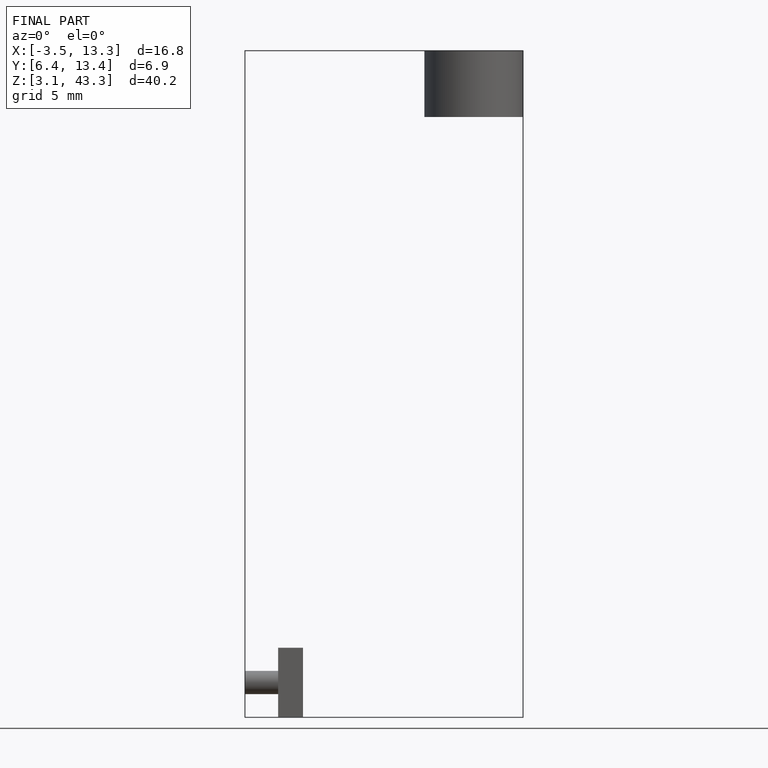
[diagram: finished part — front view with bounding-box wireframe]
